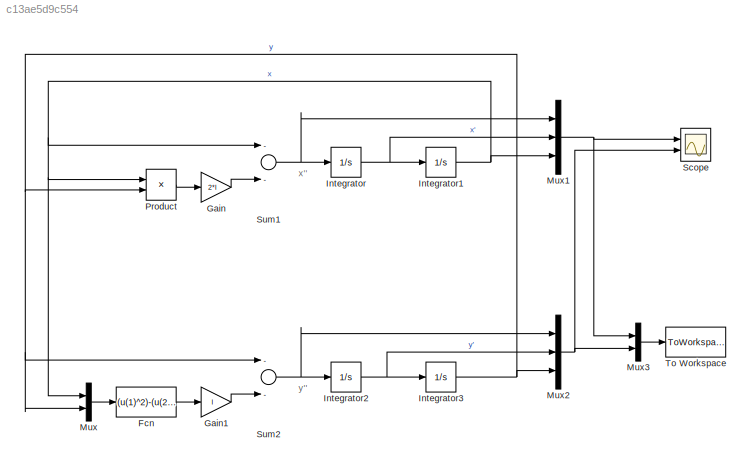
MODEL slx_c13ae5d9c554
KIND model
BLOCK [Fcn] Fcn
  Expr = (u(1)^2)-(u(2)^2)
BLOCK [Gain] Gain
  Gain = 2*l
  OutDataTypeStr = Inherit: Inherit via internal rule
  ParamDataTypeStr = Inherit: Inherit via internal rule
  SaturateOnIntegerOverflow = off
BLOCK [Gain] Gain1
  Gain = l
  OutDataTypeStr = Inherit: Inherit via internal rule
  ParamDataTypeStr = Inherit: Inherit via internal rule
  SaturateOnIntegerOverflow = off
BLOCK [Integrator] Integrator
  InitialCondition = param.ic(2)
  Ports = [1, 1]
BLOCK [Integrator] Integrator1
  InitialCondition = param.ic(1)
  Ports = [1, 1]
BLOCK [Integrator] Integrator2
  InitialCondition = param.ic(4)
  Ports = [1, 1]
BLOCK [Integrator] Integrator3
  InitialCondition = param.ic(3)
  Ports = [1, 1]
BLOCK [Mux] Mux
  DisplayOption = bar
  Inputs = 2
  Ports = [2, 1]
BLOCK [Mux] Mux1
  DisplayOption = bar
  Inputs = 3
  Ports = [3, 1]
BLOCK [Mux] Mux2
  DisplayOption = bar
  Inputs = 3
  Ports = [3, 1]
BLOCK [Mux] Mux3
  DisplayOption = bar
  Inputs = 2
  Ports = [2, 1]
BLOCK [Product] Product
  InputSameDT = off
  OutDataTypeStr = Inherit: Inherit via internal rule
  Ports = [2, 1]
  RndMeth = Floor
  SaturateOnIntegerOverflow = off
BLOCK [Scope] Scope
  Floating = off
  LimitDataPoints = off
  NumInputPorts = 2
  Ports = [2]
  ShowLegends = off
  YMax = 5~5
  YMin = -5~-5
BLOCK [Sum] Sum1
  InputSameDT = off
  Inputs = --
  OutDataTypeStr = Inherit: Inherit via internal rule
  Ports = [2, 1]
  SaturateOnIntegerOverflow = off
BLOCK [Sum] Sum2
  InputSameDT = off
  Inputs = --
  OutDataTypeStr = Inherit: Inherit via internal rule
  Ports = [2, 1]
  SaturateOnIntegerOverflow = off
BLOCK [ToWorkspace] To Workspace
  FixptAsFi = on
  MaxDataPoints = inf
  Ports = [1]
  SampleTime = -1
  Save2DSignal = 3-D array (concatenate along third dimension)
  SaveFormat = Timeseries
  VariableName = simout
ANNOTATION (root): x''
ANNOTATION (root): y''
LINE Fcn:1 -> Gain1:1
LINE Gain1:1 -> Sum2:2
LINE Gain:1 -> Sum1:2
NET Integrator1:1 -> Mux1:3, Mux:1, Product:1, Sum1:1
NET Integrator2:1 -> Integrator3:1, Mux2:2
NET Integrator3:1 -> Mux2:3, Mux:2, Product:2, Sum2:1
NET Integrator:1 -> Integrator1:1, Mux1:2
NET Mux1:1 -> Mux3:1, Scope:1
NET Mux2:1 -> Mux3:2, Scope:2
LINE Mux3:1 -> To Workspace:1
LINE Mux:1 -> Fcn:1
LINE Product:1 -> Gain:1
NET Sum1:1 -> Integrator:1, Mux1:1
NET Sum2:1 -> Integrator2:1, Mux2:1
note: NET lines group one-source signal fan-out (src -> all destinations, sorted); 1:1 wires keep LINE
